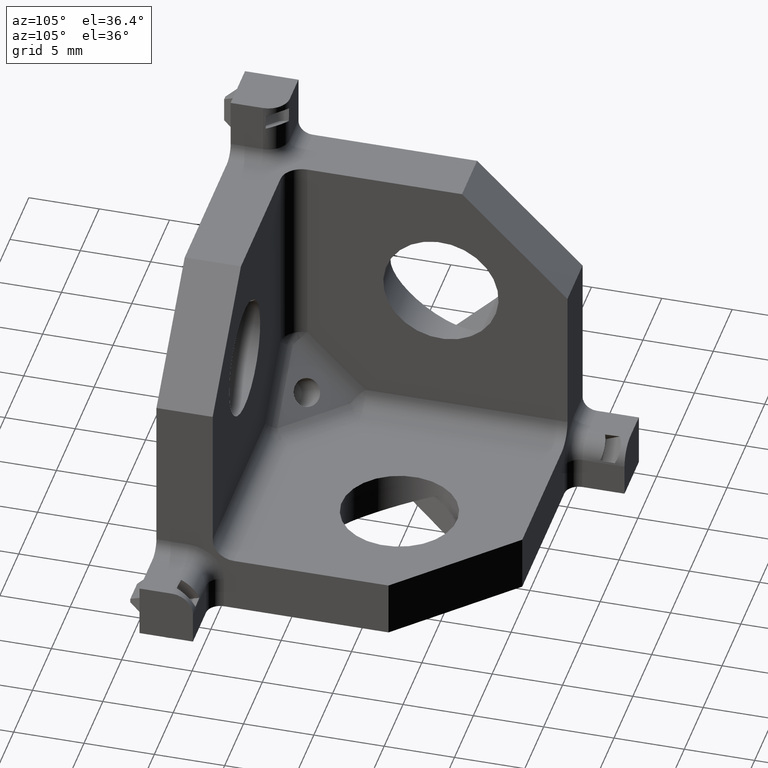
[diagram: clean part render]
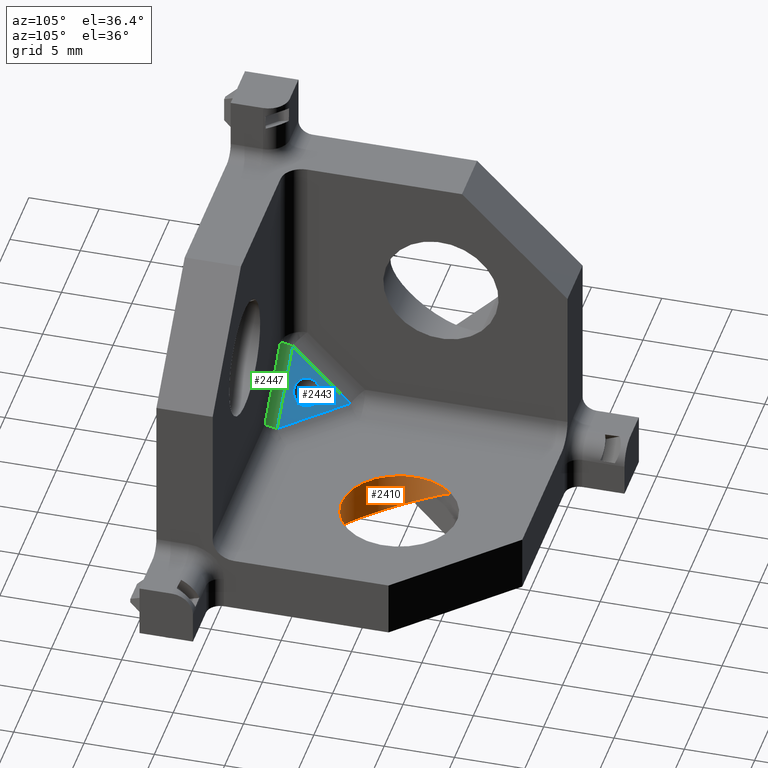
[diagram: same view with three faces highlighted in distinct colors, each labeled with its STEP entity id]
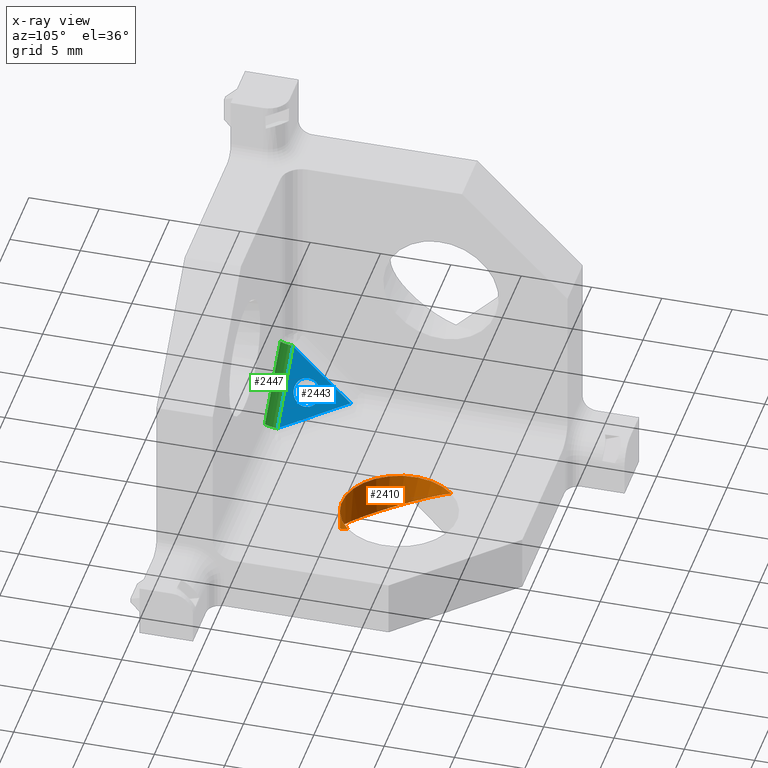
[diagram: x-ray of the same camera — body ghosted, the three highlighted faces saturated]
A machine part, auxiliary view with three faces highlighted in distinct colors.
The next image is the same camera in x-ray (body ghosted, the three faces saturated) — at least one of them is partly hidden behind the body in this view.
Their STEP definitions:

[orange] entity #2410 — the highlighted cylindrical surface (partial cylindrical patch) has radius 4.1 mm, axis along (0, 0, 1).
#161=ELLIPSE('',#2598,5.02145412091436,4.10000024188695);
#178=CYLINDRICAL_SURFACE('',#2597,4.1);
#212=FACE_OUTER_BOUND('',#364,.T.);
#364=EDGE_LOOP('',(#1785,#1786));
#525=CIRCLE('',#2599,4.1);
#1192=VERTEX_POINT('',#3674);
#1193=VERTEX_POINT('',#3675);
#1429=EDGE_CURVE('',#1192,#1193,#161,.T.);
#1430=EDGE_CURVE('',#1192,#1193,#525,.T.);
#1785=ORIENTED_EDGE('',*,*,#1429,.F.);
#1786=ORIENTED_EDGE('',*,*,#1430,.T.);
#2410=ADVANCED_FACE('',(#212),#178,.F.);
#2597=AXIS2_PLACEMENT_3D('',#3673,#2907,#2908);
#2598=AXIS2_PLACEMENT_3D('',#3676,#2909,#2910);
#2599=AXIS2_PLACEMENT_3D('',#3677,#2911,#2912);
#2907=DIRECTION('center_axis',(0.,0.,1.));
#2908=DIRECTION('ref_axis',(-0.707106781184109,-0.707106781188986,0.));
#2909=DIRECTION('center_axis',(-0.408248290463863,-0.408248290463863,0.816496580927726));
#2910=DIRECTION('ref_axis',(-0.577350269203066,-0.577350269176186,-0.577350269189626));
#2911=DIRECTION('center_axis',(0.,0.,1.));
#2912=DIRECTION('ref_axis',(1.,0.,0.));
#3673=CARTESIAN_POINT('Origin',(0.999999999999998,0.999999999999999,-10.));
#3674=CARTESIAN_POINT('',(-1.90054581892689,3.89772944480616,-9.99999999999262));
#3675=CARTESIAN_POINT('',(3.89772944482231,-1.90054581891073,-9.99999999999026));
#3676=CARTESIAN_POINT('Origin',(1.00000008555459,1.00000008555457,-9.99859172732815));
#3677=CARTESIAN_POINT('Origin',(0.999999999999998,0.999999999999999,-10.));

[blue] entity #2443 — the highlighted planar face has unit normal (0.5774, 0.5774, 0.5774).
#51=FACE_BOUND('',#408,.T.);
#73=PLANE('',#2673);
#245=FACE_OUTER_BOUND('',#407,.T.);
#407=EDGE_LOOP('',(#1991,#1992,#1993));
#408=EDGE_LOOP('',(#1994,#1995));
#512=CIRCLE('',#2575,0.99999999999999);
#513=CIRCLE('',#2576,0.99999999999999);
#708=LINE('',#3903,#980);
#709=LINE('',#3905,#981);
#710=LINE('',#3906,#982);
#980=VECTOR('',#3134,1000.);
#981=VECTOR('',#3135,1000.);
#982=VECTOR('',#3136,1000.);
#1120=VERTEX_POINT('',#3519);
#1121=VERTEX_POINT('',#3521);
#1270=VERTEX_POINT('',#3901);
#1271=VERTEX_POINT('',#3902);
#1272=VERTEX_POINT('',#3904);
#1354=EDGE_CURVE('',#1120,#1121,#512,.T.);
#1355=EDGE_CURVE('',#1121,#1120,#513,.T.);
#1545=EDGE_CURVE('',#1270,#1271,#708,.T.);
#1546=EDGE_CURVE('',#1271,#1272,#709,.T.);
#1547=EDGE_CURVE('',#1272,#1270,#710,.T.);
#1991=ORIENTED_EDGE('',*,*,#1545,.T.);
#1992=ORIENTED_EDGE('',*,*,#1546,.T.);
#1993=ORIENTED_EDGE('',*,*,#1547,.T.);
#1994=ORIENTED_EDGE('',*,*,#1355,.F.);
#1995=ORIENTED_EDGE('',*,*,#1354,.F.);
#2443=ADVANCED_FACE('',(#245,#51),#73,.T.);
#2575=AXIS2_PLACEMENT_3D('',#3522,#2804,#2805);
#2576=AXIS2_PLACEMENT_3D('',#3523,#2806,#2807);
#2673=AXIS2_PLACEMENT_3D('',#3900,#3132,#3133);
#2804=DIRECTION('center_axis',(0.577350269189625,0.577350269189627,0.577350269189625));
#2805=DIRECTION('ref_axis',(-0.707106781186549,0.707106781186546,2.22044604925031E-16));
#2806=DIRECTION('center_axis',(0.577350269189625,0.577350269189627,0.577350269189625));
#2807=DIRECTION('ref_axis',(-0.707106781186549,0.707106781186546,2.22044604925031E-16));
#3132=DIRECTION('center_axis',(0.577350269189625,0.577350269189627,0.577350269189625));
#3133=DIRECTION('ref_axis',(-0.707106781186549,0.707106781186546,-2.77555756156289E-17));
#3134=DIRECTION('',(0.707106781186547,4.22358641539667E-17,-0.707106781186548));
#3135=DIRECTION('',(-0.707106781186549,0.707106781186546,9.75304457164222E-17));
#3136=DIRECTION('',(0.,-0.707106781186546,0.707106781186549));
#3519=CARTESIAN_POINT('',(-7.28648058999118,-8.70069415236426,-7.99358737117771));
#3521=CARTESIAN_POINT('',(-8.70069415236425,-7.28648058999118,-7.99358737117771));
#3522=CARTESIAN_POINT('Origin',(-7.99358737117772,-7.99358737117772,-7.99358737117771));
#3523=CARTESIAN_POINT('Origin',(-7.99358737117772,-7.99358737117772,-7.99358737117771));
#3900=CARTESIAN_POINT('Origin',(-7.99358737117771,-7.99358737117773,-7.99358737117771));
#3901=CARTESIAN_POINT('',(-9.36602540378444,-9.36602540378444,-5.24871130596427));
#3902=CARTESIAN_POINT('',(-5.24871130596427,-9.36602540378444,-9.36602540378444));
#3903=CARTESIAN_POINT('',(-5.79774941164093,-9.36602540378444,-8.81698729810778));
#3904=CARTESIAN_POINT('',(-9.36602540378444,-5.24871130596429,-9.36602540378444));
#3905=CARTESIAN_POINT('',(-7.30736835487435,-7.30736835487437,-9.36602540378443));
#3906=CARTESIAN_POINT('',(-9.36602540378444,-7.30736835487437,-7.30736835487435));

[green] entity #2447 — the highlighted cylindrical surface (edge-blend (fillet) strip) has radius 1.5 mm, axis along (0.7071, 0, -0.7071).
#192=CYLINDRICAL_SURFACE('',#2680,1.5);
#249=FACE_OUTER_BOUND('',#412,.T.);
#412=EDGE_LOOP('',(#2008,#2009,#2010,#2011));
#562=CIRCLE('',#2681,1.5);
#563=CIRCLE('',#2682,1.5);
#669=LINE('',#3758,#941);
#708=LINE('',#3903,#980);
#941=VECTOR('',#2967,1000.);
#980=VECTOR('',#3134,1000.);
#1228=VERTEX_POINT('',#3755);
#1229=VERTEX_POINT('',#3757);
#1270=VERTEX_POINT('',#3901);
#1271=VERTEX_POINT('',#3902);
#1471=EDGE_CURVE('',#1228,#1229,#669,.T.);
#1545=EDGE_CURVE('',#1270,#1271,#708,.T.);
#1551=EDGE_CURVE('',#1229,#1270,#562,.T.);
#1552=EDGE_CURVE('',#1271,#1228,#563,.T.);
#2008=ORIENTED_EDGE('',*,*,#1551,.F.);
#2009=ORIENTED_EDGE('',*,*,#1471,.F.);
#2010=ORIENTED_EDGE('',*,*,#1552,.F.);
#2011=ORIENTED_EDGE('',*,*,#1545,.F.);
#2447=ADVANCED_FACE('',(#249),#192,.F.);
#2680=AXIS2_PLACEMENT_3D('',#3913,#3149,#3150);
#2681=AXIS2_PLACEMENT_3D('',#3914,#3151,#3152);
#2682=AXIS2_PLACEMENT_3D('',#3915,#3153,#3154);
#2967=DIRECTION('',(-0.707106781186547,0.,0.707106781186548));
#3134=DIRECTION('',(0.707106781186547,4.22358641539667E-17,-0.707106781186548));
#3149=DIRECTION('center_axis',(0.707106781186547,0.,-0.707106781186548));
#3150=DIRECTION('ref_axis',(-0.707106781186548,0.,-0.707106781186547));
#3151=DIRECTION('center_axis',(0.707106781186548,0.,-0.707106781186548));
#3152=DIRECTION('ref_axis',(-0.707106781186548,0.,-0.707106781186548));
#3153=DIRECTION('center_axis',(-0.707106781186547,-8.17756488897799E-16,
0.707106781186548));
#3154=DIRECTION('ref_axis',(0.707106781186548,9.86076131526265E-32,0.707106781186547));
#3755=CARTESIAN_POINT('',(-4.38268590217984,-10.,-8.5));
#3757=CARTESIAN_POINT('',(-8.5,-10.,-4.38268590217983));
#3758=CARTESIAN_POINT('',(-7.95096189432334,-10.,-4.93172400785649));
#3901=CARTESIAN_POINT('',(-9.36602540378444,-9.36602540378444,-5.24871130596427));
#3902=CARTESIAN_POINT('',(-5.24871130596427,-9.36602540378444,-9.36602540378444));
#3903=CARTESIAN_POINT('',(-5.79774941164093,-9.36602540378444,-8.81698729810778));
#3913=CARTESIAN_POINT('Origin',(-6.44134295108992,-8.5,-6.44134295108992));
#3914=CARTESIAN_POINT('Origin',(-8.5,-8.5,-4.38268590217983));
#3915=CARTESIAN_POINT('Origin',(-4.38268590217984,-8.5,-8.5));